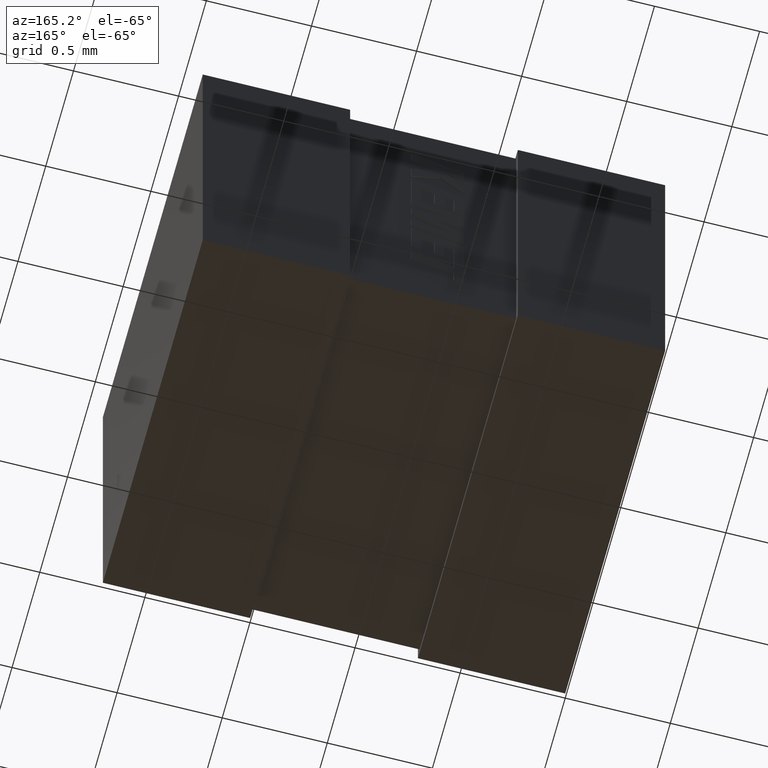
[diagram: clean part render]
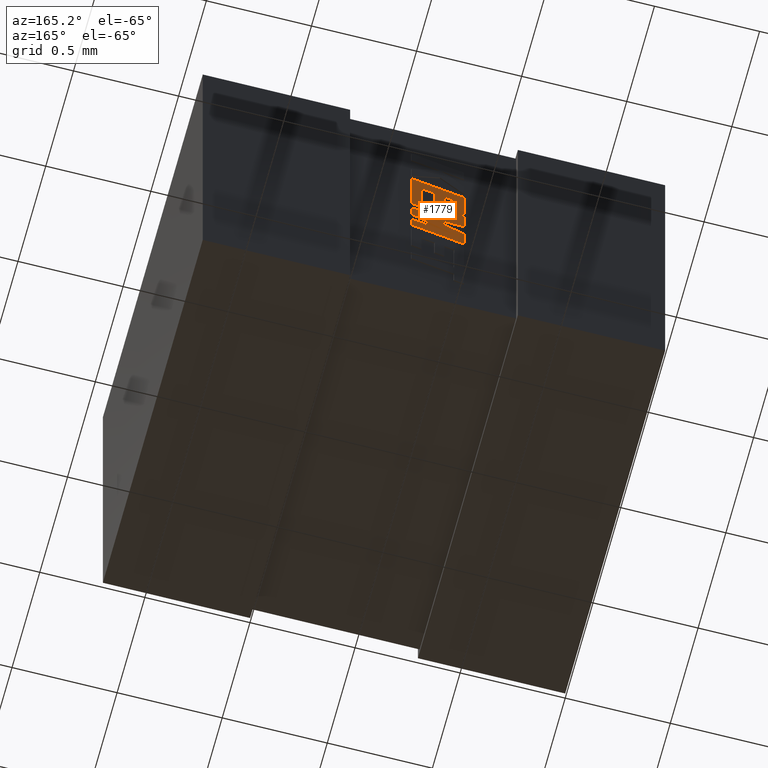
[diagram: same view with one face highlighted and labeled with its STEP entity id]
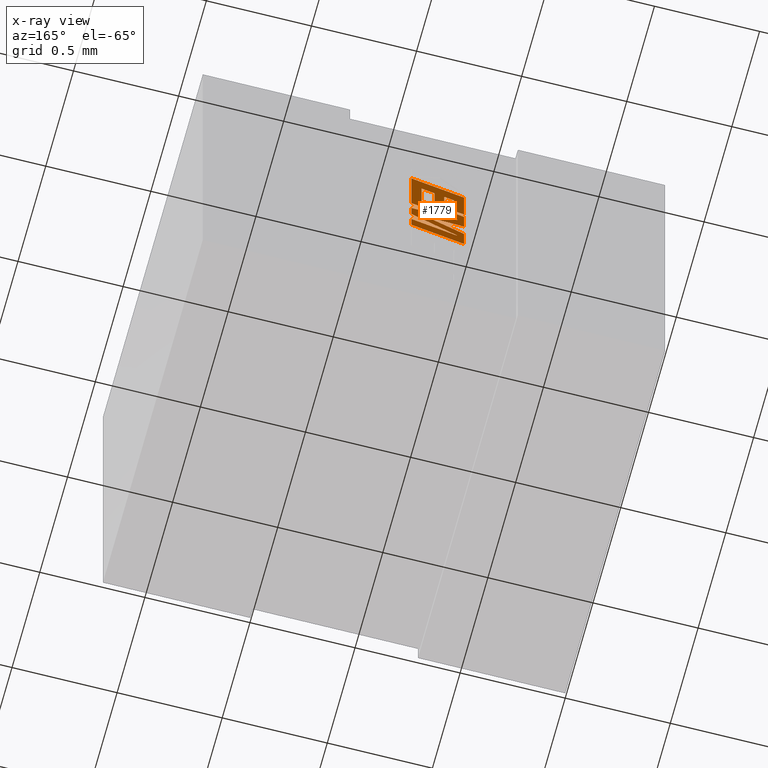
[diagram: x-ray of the same camera — body ghosted, the highlighted face saturated]
A machine part, auxiliary view. The second image highlights one B-rep face of the part: STEP entity #1779.
The next image is the same camera in x-ray: the body ghosted, the highlighted face saturated — about 0% of this face is hidden behind the body in this view.
In plain terms, the highlighted planar face has unit normal (-0, -1, -0).
Its self-contained STEP definition (entity closure, byte-faithful):
#23 = VECTOR ( 'NONE', #677, 1000.000000000000000 ) ;
#32 = LINE ( 'NONE', #1462, #588 ) ;
#33 = EDGE_CURVE ( 'NONE', #1253, #1918, #465, .T. ) ;
#56 = VECTOR ( 'NONE', #1070, 1000.000000000000000 ) ;
#61 = VECTOR ( 'NONE', #1246, 1000.000000000000000 ) ;
#99 = EDGE_CURVE ( 'NONE', #2230, #1012, #369, .T. ) ;
#117 = LINE ( 'NONE', #2183, #1292 ) ;
#122 = CARTESIAN_POINT ( 'NONE',  ( 1.200099999999999900, 1.773966199999999600, -0.5293823841560468800 ) ) ;
#123 = VECTOR ( 'NONE', #2108, 1000.000000000000200 ) ;
#132 = ORIENTED_EDGE ( 'NONE', *, *, #33, .T. ) ;
#146 = DIRECTION ( 'NONE',  ( 0.9611542233438126200, -6.450722000480603100E-017, 0.2760118818970521700 ) ) ;
#159 = DIRECTION ( 'NONE',  ( -0.9619530280415614600, 6.448740904524546700E-017, -0.2732148821745822900 ) ) ;
#168 = DIRECTION ( 'NONE',  ( -0.9985542843760937300, 6.136458351858177500E-017, -0.05375259206910180900 ) ) ;
#192 = VERTEX_POINT ( 'NONE', #374 ) ;
#222 = ORIENTED_EDGE ( 'NONE', *, *, #1494, .T. ) ;
#223 = CARTESIAN_POINT ( 'NONE',  ( 1.200099999999999900, 1.773966199999999600, -0.8504997714966766600 ) ) ;
#237 = LINE ( 'NONE', #434, #1963 ) ;
#249 = VECTOR ( 'NONE', #1131, 1000.000000000000100 ) ;
#262 = CARTESIAN_POINT ( 'NONE',  ( 1.200099999999999900, 1.773966199999999600, -0.9172223887039442400 ) ) ;
#276 = LINE ( 'NONE', #1031, #1032 ) ;
#283 = CARTESIAN_POINT ( 'NONE',  ( 0.9498192217758174600, 1.773966199999999400, -1.106679097868822800 ) ) ;
#294 = EDGE_CURVE ( 'NONE', #2390, #1956, #995, .T. ) ;
#318 = DIRECTION ( 'NONE',  ( -0.9610674221107118300, 6.450932799120076900E-017, -0.2763139702538958700 ) ) ;
#328 = LINE ( 'NONE', #283, #56 ) ;
#338 = LINE ( 'NONE', #2218, #61 ) ;
#343 = ORIENTED_EDGE ( 'NONE', *, *, #2356, .T. ) ;
#344 = DIRECTION ( 'NONE',  ( 0.9984327301130131400, -6.141094727764789200E-017, 0.05596501978088726900 ) ) ;
#354 = ORIENTED_EDGE ( 'NONE', *, *, #1464, .T. ) ;
#355 = LINE ( 'NONE', #2027, #23 ) ;
#367 = DIRECTION ( 'NONE',  ( -5.887531099066825600E-033, -2.426065257176612000E-017, 1.000000000000000000 ) ) ;
#369 = LINE ( 'NONE', #961, #2405 ) ;
#372 = DIRECTION ( 'NONE',  ( 5.887531099066827000E-033, 2.426065257176610200E-017, -1.000000000000000000 ) ) ;
#374 = CARTESIAN_POINT ( 'NONE',  ( 0.9762085849715667100, 1.773966199999999400, -1.035415565063737600 ) ) ;
#377 = ORIENTED_EDGE ( 'NONE', *, *, #99, .T. ) ;
#378 = EDGE_CURVE ( 'NONE', #1012, #2421, #461, .T. ) ;
#409 = EDGE_CURVE ( 'NONE', #948, #659, #338, .T. ) ;
#431 = LINE ( 'NONE', #594, #123 ) ;
#434 = CARTESIAN_POINT ( 'NONE',  ( 1.090279398368933200, 1.773966199999999600, -0.6319947485906134400 ) ) ;
#442 = DIRECTION ( 'NONE',  ( -5.887531099066825600E-033, -2.426065257176612000E-017, 1.000000000000000000 ) ) ;
#444 = EDGE_CURVE ( 'NONE', #659, #1954, #276, .T. ) ;
#453 = DIRECTION ( 'NONE',  ( -0.9601763114327620500, 6.453047273805148500E-017, -0.2793947940878201400 ) ) ;
#461 = LINE ( 'NONE', #1039, #737 ) ;
#465 = LINE ( 'NONE', #750, #249 ) ;
#513 = CARTESIAN_POINT ( 'NONE',  ( 1.090279398368933200, 1.773966199999999600, -0.7394029650286045900 ) ) ;
#515 = VECTOR ( 'NONE', #1863, 1000.000000000000000 ) ;
#542 = EDGE_LOOP ( 'NONE', ( #222, #2223, #1898, #1861, #1717, #830, #1472, #747, #343, #377, #1404, #2288, #2111, #2012, #1980, #354, #132, #1655, #1506, #2290, #1478, #1380, #2411 ) ) ;
#569 = VERTEX_POINT ( 'NONE', #2427 ) ;
#571 = LINE ( 'NONE', #1519, #2084 ) ;
#586 = CARTESIAN_POINT ( 'NONE',  ( 0.9498192217758174600, 1.773966199999999600, -0.9178518984409710400 ) ) ;
#588 = VECTOR ( 'NONE', #146, 1000.000000000000200 ) ;
#592 = EDGE_CURVE ( 'NONE', #192, #1067, #32, .T. ) ;
#593 = VERTEX_POINT ( 'NONE', #1855 ) ;
#594 = CARTESIAN_POINT ( 'NONE',  ( 1.200099999999999900, 1.773966199999999600, -0.9172223887039442400 ) ) ;
#607 = EDGE_CURVE ( 'NONE', #1407, #192, #431, .T. ) ;
#659 = VERTEX_POINT ( 'NONE', #1538 ) ;
#677 = DIRECTION ( 'NONE',  ( 5.887531099066827000E-033, 2.426065257176610200E-017, -1.000000000000000000 ) ) ;
#715 = VERTEX_POINT ( 'NONE', #223 ) ;
#728 = CARTESIAN_POINT ( 'NONE',  ( 0.9974588828019515000, 1.773966199999999600, -0.6587410230345505100 ) ) ;
#737 = VECTOR ( 'NONE', #453, 1000.000000000000200 ) ;
#747 = ORIENTED_EDGE ( 'NONE', *, *, #1851, .T. ) ;
#750 = CARTESIAN_POINT ( 'NONE',  ( 1.200099999999999900, 1.773966199999999600, -0.7990117092339513700 ) ) ;
#757 = CARTESIAN_POINT ( 'NONE',  ( -0.2511059422511678900, 1.773966199999999600, -0.03665713865411493500 ) ) ;
#784 = EDGE_CURVE ( 'NONE', #1956, #1497, #934, .T. ) ;
#798 = VERTEX_POINT ( 'NONE', #1203 ) ;
#815 = VECTOR ( 'NONE', #2283, 1000.000000000000200 ) ;
#830 = ORIENTED_EDGE ( 'NONE', *, *, #294, .T. ) ;
#899 = CARTESIAN_POINT ( 'NONE',  ( 1.044011067979251100, 1.773966199999999600, -0.6451951377246518700 ) ) ;
#927 = FACE_OUTER_BOUND ( 'NONE', #542, .T. ) ;
#934 = LINE ( 'NONE', #1754, #2364 ) ;
#948 = VERTEX_POINT ( 'NONE', #1022 ) ;
#961 = CARTESIAN_POINT ( 'NONE',  ( 1.044011067979251100, 1.773966199999999800, -0.7526185742584863300 ) ) ;
#993 = DIRECTION ( 'NONE',  ( -0.9617234872620599200, 6.449317853406210500E-017, -0.2740217765954055000 ) ) ;
#995 = LINE ( 'NONE', #1392, #2490 ) ;
#1006 = CARTESIAN_POINT ( 'NONE',  ( 0.9974588828019515000, 1.773966199999999600, -0.7727715031783797300 ) ) ;
#1012 = VERTEX_POINT ( 'NONE', #899 ) ;
#1022 = CARTESIAN_POINT ( 'NONE',  ( 0.9498192217758174600, 1.773966199999999600, -0.7863021683924508200 ) ) ;
#1031 = CARTESIAN_POINT ( 'NONE',  ( 0.9498192217758174600, 1.773966199999999600, -0.6014031169308583500 ) ) ;
#1032 = VECTOR ( 'NONE', #1610, 1000.000000000000100 ) ;
#1035 = DIRECTION ( 'NONE',  ( 0.8958676361826948300, -6.466368696521864600E-017, 0.4443210308329223500 ) ) ;
#1039 = CARTESIAN_POINT ( 'NONE',  ( 1.044011067979251100, 1.773966199999999600, -0.6451951377246518700 ) ) ;
#1057 = VECTOR ( 'NONE', #1881, 1000.000000000000000 ) ;
#1067 = VERTEX_POINT ( 'NONE', #2436 ) ;
#1070 = DIRECTION ( 'NONE',  ( -5.887531099066827000E-033, -2.426065257176610200E-017, 1.000000000000000000 ) ) ;
#1072 = EDGE_CURVE ( 'NONE', #569, #798, #1905, .T. ) ;
#1105 = VECTOR ( 'NONE', #168, 1000.000000000000000 ) ;
#1109 = VERTEX_POINT ( 'NONE', #2270 ) ;
#1121 = EDGE_CURVE ( 'NONE', #2421, #1373, #1637, .T. ) ;
#1131 = DIRECTION ( 'NONE',  ( -0.9611638845408402300, 6.450698484348176300E-017, -0.2759782365592664000 ) ) ;
#1182 = EDGE_CURVE ( 'NONE', #593, #2390, #1781, .T. ) ;
#1199 = LINE ( 'NONE', #2407, #1447 ) ;
#1203 = CARTESIAN_POINT ( 'NONE',  ( 0.9498192217758174600, 1.773966199999999400, -1.106679097868822800 ) ) ;
#1227 = VECTOR ( 'NONE', #344, 1000.000000000000100 ) ;
#1244 = CARTESIAN_POINT ( 'NONE',  ( 1.090279398368933200, 1.773966199999999600, -0.6319947485906134400 ) ) ;
#1246 = DIRECTION ( 'NONE',  ( -5.887531099066825600E-033, -2.426065257176612000E-017, 1.000000000000000000 ) ) ;
#1253 = VERTEX_POINT ( 'NONE', #1275 ) ;
#1275 = CARTESIAN_POINT ( 'NONE',  ( 1.200099999999999900, 1.773966199999999600, -0.7990117092339513700 ) ) ;
#1292 = VECTOR ( 'NONE', #2049, 1000.000000000000000 ) ;
#1304 = CARTESIAN_POINT ( 'NONE',  ( 0.9498192217758174600, 1.773966199999999600, -0.9969076507685146200 ) ) ;
#1322 = CARTESIAN_POINT ( 'NONE',  ( 0.9974588828019515000, 1.773966199999999600, -0.6587410230345505100 ) ) ;
#1323 = VECTOR ( 'NONE', #318, 1000.000000000000100 ) ;
#1332 = DIRECTION ( 'NONE',  ( 5.887531099066825600E-033, 2.426065257176612000E-017, -1.000000000000000000 ) ) ;
#1360 = DIRECTION ( 'NONE',  ( -6.014746668989340800E-017, -1.000000000000000000, -2.426065257176612000E-017 ) ) ;
#1373 = VERTEX_POINT ( 'NONE', #1006 ) ;
#1380 = ORIENTED_EDGE ( 'NONE', *, *, #2500, .T. ) ;
#1392 = CARTESIAN_POINT ( 'NONE',  ( 1.152483930121980200, 1.773966199999999600, -0.7530127747403588800 ) ) ;
#1404 = ORIENTED_EDGE ( 'NONE', *, *, #378, .T. ) ;
#1407 = VERTEX_POINT ( 'NONE', #262 ) ;
#1443 = CARTESIAN_POINT ( 'NONE',  ( 0.9772816017287141400, 1.773966199999999600, -0.8629893821541584400 ) ) ;
#1447 = VECTOR ( 'NONE', #1035, 1000.000000000000000 ) ;
#1462 = CARTESIAN_POINT ( 'NONE',  ( 0.9762085849715667100, 1.773966199999999400, -1.035415565063737600 ) ) ;
#1464 = EDGE_CURVE ( 'NONE', #1954, #1253, #117, .T. ) ;
#1471 = CARTESIAN_POINT ( 'NONE',  ( 1.200099999999999900, 1.773966199999999400, -1.034721528692794700 ) ) ;
#1472 = ORIENTED_EDGE ( 'NONE', *, *, #784, .T. ) ;
#1475 = CARTESIAN_POINT ( 'NONE',  ( 0.9498192217758174600, 1.773966199999999600, -0.9178518984409710400 ) ) ;
#1478 = ORIENTED_EDGE ( 'NONE', *, *, #592, .T. ) ;
#1494 = EDGE_CURVE ( 'NONE', #798, #2354, #328, .T. ) ;
#1497 = VERTEX_POINT ( 'NONE', #1244 ) ;
#1506 = ORIENTED_EDGE ( 'NONE', *, *, #2090, .T. ) ;
#1516 = EDGE_CURVE ( 'NONE', #2221, #593, #1965, .T. ) ;
#1519 = CARTESIAN_POINT ( 'NONE',  ( 1.200099999999999900, 1.773966199999999600, -0.9711213141498686900 ) ) ;
#1538 = CARTESIAN_POINT ( 'NONE',  ( 0.9498192217758174600, 1.773966199999999600, -0.6014031169308583500 ) ) ;
#1554 = VERTEX_POINT ( 'NONE', #2408 ) ;
#1610 = DIRECTION ( 'NONE',  ( 0.9610029908221285900, -6.451088711434302400E-017, 0.2765379750249930000 ) ) ;
#1637 = LINE ( 'NONE', #728, #1057 ) ;
#1655 = ORIENTED_EDGE ( 'NONE', *, *, #2225, .T. ) ;
#1692 = EDGE_CURVE ( 'NONE', #1373, #948, #2057, .T. ) ;
#1693 = CARTESIAN_POINT ( 'NONE',  ( 1.152483930121980200, 1.773966199999999600, -0.7530127747403588800 ) ) ;
#1717 = ORIENTED_EDGE ( 'NONE', *, *, #1182, .T. ) ;
#1754 = CARTESIAN_POINT ( 'NONE',  ( 1.152483930121980200, 1.773966199999999600, -0.6142709469688165700 ) ) ;
#1779 = ADVANCED_FACE ( 'NONE', ( #927 ), #1906, .F. ) ;
#1781 = LINE ( 'NONE', #2453, #815 ) ;
#1851 = EDGE_CURVE ( 'NONE', #1497, #1554, #237, .T. ) ;
#1852 = CARTESIAN_POINT ( 'NONE',  ( 1.152483930121980200, 1.773966199999999600, -0.6142709469688165700 ) ) ;
#1855 = CARTESIAN_POINT ( 'NONE',  ( 0.9498192217758174600, 1.773966199999999600, -0.8112661696113253600 ) ) ;
#1861 = ORIENTED_EDGE ( 'NONE', *, *, #1516, .T. ) ;
#1863 = DIRECTION ( 'NONE',  ( -5.887531099066825600E-033, -2.426065257176612000E-017, 1.000000000000000000 ) ) ;
#1881 = DIRECTION ( 'NONE',  ( 5.887531099066825600E-033, 2.426065257176612000E-017, -1.000000000000000000 ) ) ;
#1898 = ORIENTED_EDGE ( 'NONE', *, *, #2470, .T. ) ;
#1905 = LINE ( 'NONE', #1471, #1323 ) ;
#1906 = PLANE ( 'NONE',  #2042 ) ;
#1918 = VERTEX_POINT ( 'NONE', #2185 ) ;
#1930 = LINE ( 'NONE', #513, #2146 ) ;
#1954 = VERTEX_POINT ( 'NONE', #122 ) ;
#1956 = VERTEX_POINT ( 'NONE', #1852 ) ;
#1963 = VECTOR ( 'NONE', #2370, 1000.000000000000000 ) ;
#1965 = LINE ( 'NONE', #1475, #515 ) ;
#1975 = CARTESIAN_POINT ( 'NONE',  ( 1.044011067979251100, 1.773966199999999800, -0.7526185742584863300 ) ) ;
#1980 = ORIENTED_EDGE ( 'NONE', *, *, #444, .T. ) ;
#1988 = LINE ( 'NONE', #2507, #1105 ) ;
#2012 = ORIENTED_EDGE ( 'NONE', *, *, #409, .T. ) ;
#2027 = CARTESIAN_POINT ( 'NONE',  ( 1.200099999999999900, 1.773966199999999600, -0.8504997714966766600 ) ) ;
#2042 = AXIS2_PLACEMENT_3D ( 'NONE', #757, #1360, #1332 ) ;
#2049 = DIRECTION ( 'NONE',  ( 5.887531099066825600E-033, 2.426065257176612000E-017, -1.000000000000000000 ) ) ;
#2051 = EDGE_CURVE ( 'NONE', #2354, #1109, #1199, .T. ) ;
#2056 = LINE ( 'NONE', #1443, #1227 ) ;
#2057 = LINE ( 'NONE', #2366, #2174 ) ;
#2084 = VECTOR ( 'NONE', #372, 1000.000000000000000 ) ;
#2090 = EDGE_CURVE ( 'NONE', #715, #1407, #355, .T. ) ;
#2108 = DIRECTION ( 'NONE',  ( -0.8843386665636737700, 6.451671741402206000E-017, -0.4668459304956865100 ) ) ;
#2111 = ORIENTED_EDGE ( 'NONE', *, *, #1692, .T. ) ;
#2146 = VECTOR ( 'NONE', #2456, 1000.000000000000000 ) ;
#2174 = VECTOR ( 'NONE', #159, 1000.000000000000100 ) ;
#2183 = CARTESIAN_POINT ( 'NONE',  ( 1.200099999999999900, 1.773966199999999600, -0.5293823841560468800 ) ) ;
#2185 = CARTESIAN_POINT ( 'NONE',  ( 0.9772816017287141400, 1.773966199999999600, -0.8629893821541584400 ) ) ;
#2218 = CARTESIAN_POINT ( 'NONE',  ( 0.9498192217758174600, 1.773966199999999600, -0.7863021683924508200 ) ) ;
#2221 = VERTEX_POINT ( 'NONE', #586 ) ;
#2223 = ORIENTED_EDGE ( 'NONE', *, *, #2051, .T. ) ;
#2225 = EDGE_CURVE ( 'NONE', #1918, #715, #2056, .T. ) ;
#2230 = VERTEX_POINT ( 'NONE', #1975 ) ;
#2270 = CARTESIAN_POINT ( 'NONE',  ( 1.128623025452635500, 1.773966199999999600, -0.9082268153885770800 ) ) ;
#2283 = DIRECTION ( 'NONE',  ( 0.9610853065513876900, -6.450889437339623500E-017, 0.2762517575166265100 ) ) ;
#2288 = ORIENTED_EDGE ( 'NONE', *, *, #1121, .T. ) ;
#2290 = ORIENTED_EDGE ( 'NONE', *, *, #607, .T. ) ;
#2354 = VERTEX_POINT ( 'NONE', #1304 ) ;
#2356 = EDGE_CURVE ( 'NONE', #1554, #2230, #1930, .T. ) ;
#2364 = VECTOR ( 'NONE', #993, 1000.000000000000100 ) ;
#2366 = CARTESIAN_POINT ( 'NONE',  ( 0.9974588828019515000, 1.773966199999999600, -0.7727715031783797300 ) ) ;
#2370 = DIRECTION ( 'NONE',  ( 5.887531099066825600E-033, 2.426065257176612000E-017, -1.000000000000000000 ) ) ;
#2390 = VERTEX_POINT ( 'NONE', #1693 ) ;
#2405 = VECTOR ( 'NONE', #367, 1000.000000000000000 ) ;
#2407 = CARTESIAN_POINT ( 'NONE',  ( 0.9498192217758174600, 1.773966199999999600, -0.9969076507685146200 ) ) ;
#2408 = CARTESIAN_POINT ( 'NONE',  ( 1.090279398368933200, 1.773966199999999600, -0.7394029650286045900 ) ) ;
#2411 = ORIENTED_EDGE ( 'NONE', *, *, #1072, .T. ) ;
#2421 = VERTEX_POINT ( 'NONE', #1322 ) ;
#2427 = CARTESIAN_POINT ( 'NONE',  ( 1.200099999999999900, 1.773966199999999400, -1.034721528692794700 ) ) ;
#2436 = CARTESIAN_POINT ( 'NONE',  ( 1.200099999999999900, 1.773966199999999600, -0.9711213141498686900 ) ) ;
#2453 = CARTESIAN_POINT ( 'NONE',  ( 0.9498192217758174600, 1.773966199999999600, -0.8112661696113253600 ) ) ;
#2456 = DIRECTION ( 'NONE',  ( -0.9615454294334472300, 6.449761118757585800E-017, -0.2746459304916925600 ) ) ;
#2470 = EDGE_CURVE ( 'NONE', #1109, #2221, #1988, .T. ) ;
#2490 = VECTOR ( 'NONE', #442, 1000.000000000000000 ) ;
#2500 = EDGE_CURVE ( 'NONE', #1067, #569, #571, .T. ) ;
#2507 = CARTESIAN_POINT ( 'NONE',  ( 1.128623025452635500, 1.773966199999999600, -0.9082268153885770800 ) ) ;